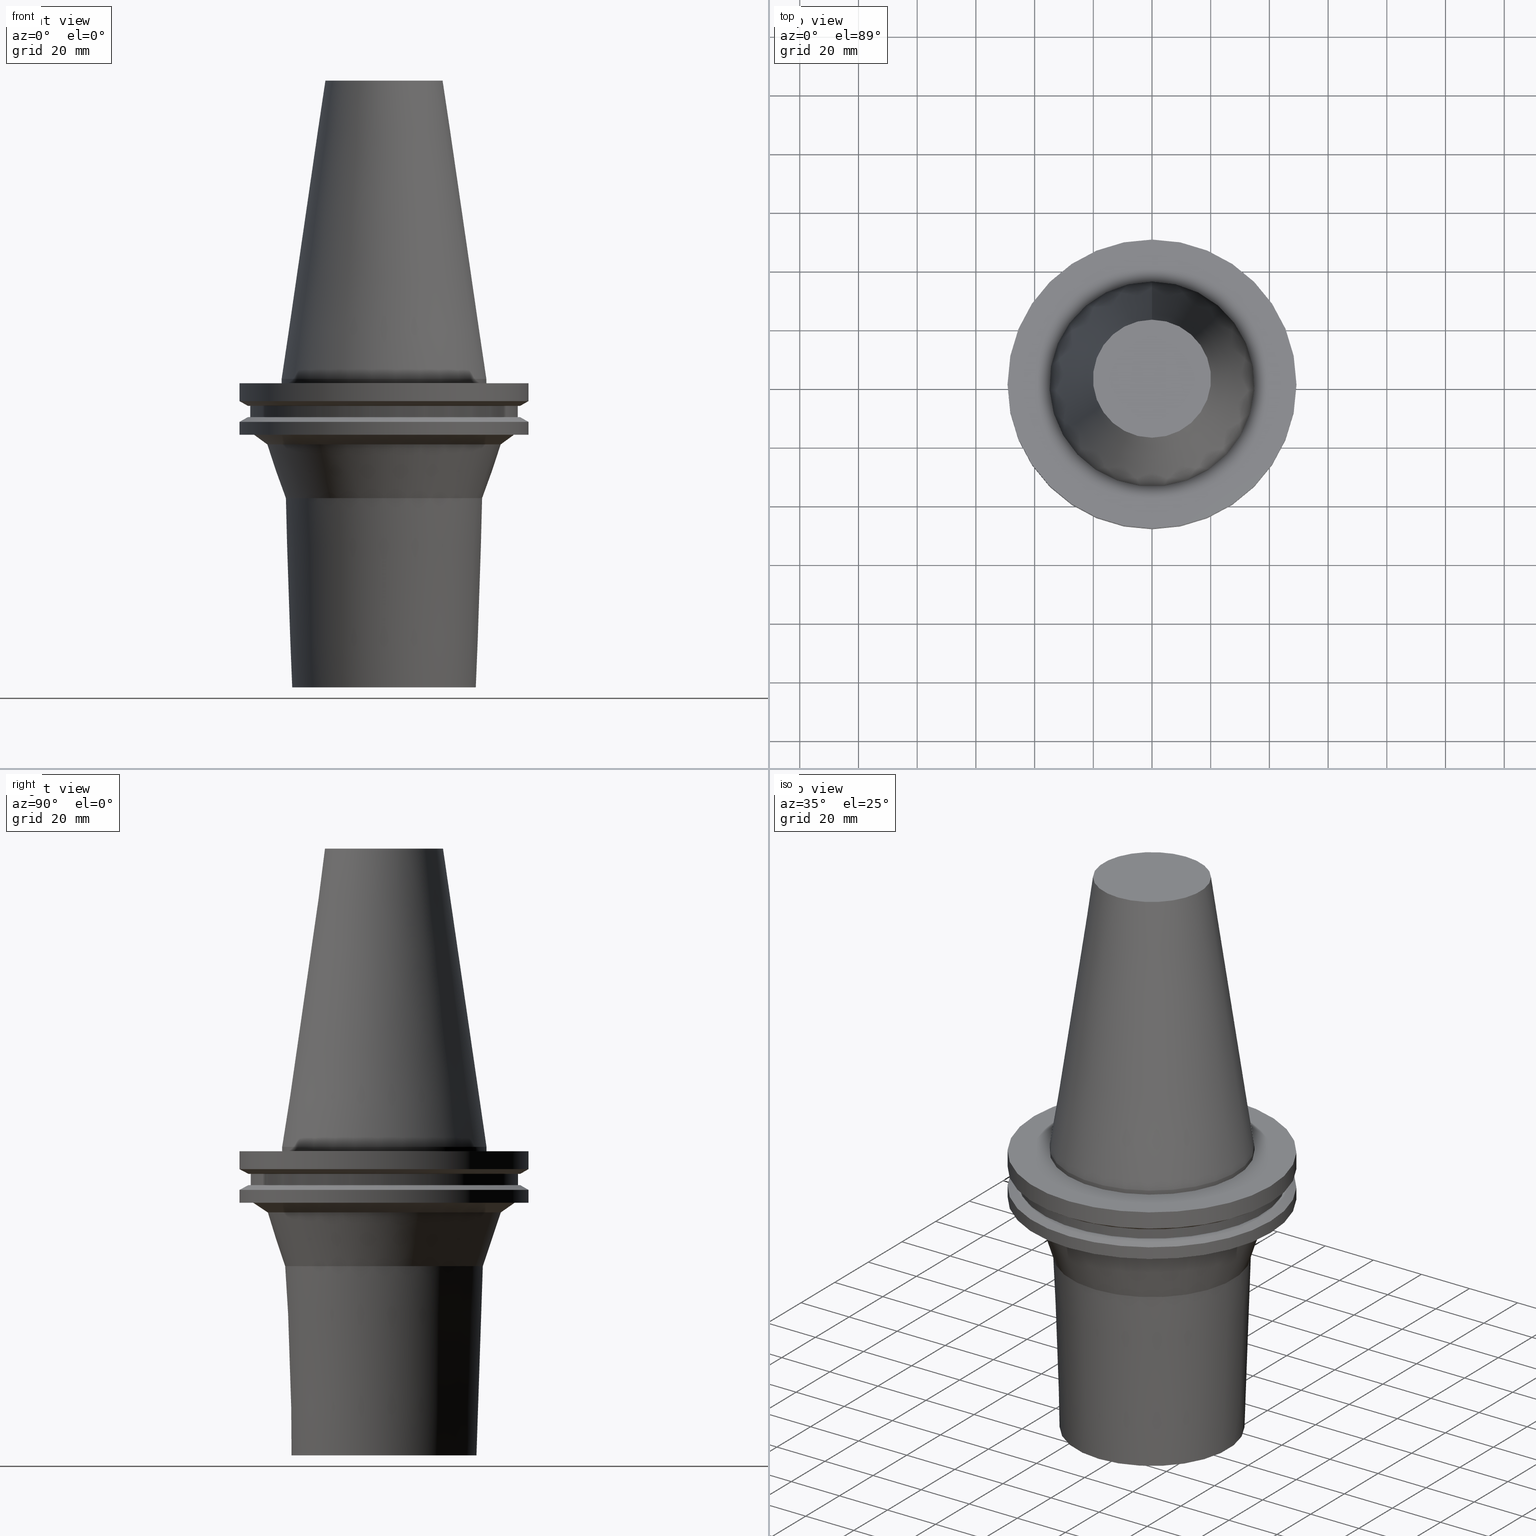
[diagram: canonical four-view strip — front | top / right | iso, engineering-drawing reading convention]
A machine part, canonical four-view strip (front | top / right | iso — engineering-drawing reading convention). The complete STEP part file that produces these views, byte-faithful:
ISO-10303-21;
HEADER;
FILE_DESCRIPTION((''),'1');
FILE_NAME('V:/01_Dxf_Field-HP\X2\FF71FF6FFF8CFF9F5916\X0\2013/BIGKAISER\X2\FF76FF80FF9BFF78FF9E63B28F095206\X0\_BKUS_201803/BCV_Y-S/BCV50Y-S63-4.125.stp','2018-03-13T06:14:54',(''),(''),'Spatial Interop R21 SP3','Kubotek KeyCreator 2011 V10.0.2 (22737)',' ');
FILE_SCHEMA(('automotive_design'));
ENDSEC;
DATA;
#1=MECHANICAL_DESIGN_GEOMETRIC_PRESENTATION_REPRESENTATION(' ',(#10,#11,#12,#13,#14,#15,#16,#17,#18,#19,#20,#21,#22,#23,#24,#25,#26,#27,#28,#29,#30,#31,#32,#33,#34,#35,#36,#37,#38,#39,#40,#41),#6);
#2=PRODUCT_DEFINITION_CONTEXT('',#42,'design');
#3=APPLICATION_PROTOCOL_DEFINITION('INTERNATIONAL STANDARD','automotive_design',1994,#42);
#4=PRODUCT_CATEGORY_RELATIONSHIP('NONE','NONE',#43,#44);
#5=SHAPE_DEFINITION_REPRESENTATION(#45,#46);
#6= (GEOMETRIC_REPRESENTATION_CONTEXT(3)GLOBAL_UNCERTAINTY_ASSIGNED_CONTEXT((#49))GLOBAL_UNIT_ASSIGNED_CONTEXT((#51,#52,#53))REPRESENTATION_CONTEXT('NONE','WORKSPACE'));
#10=STYLED_ITEM('',(#55),#56);
#11=STYLED_ITEM('',(#57,#58),#59);
#12=STYLED_ITEM('',(#60),#61);
#13=STYLED_ITEM('',(#62),#63);
#14=STYLED_ITEM('',(#64,#65),#66);
#15=STYLED_ITEM('',(#67,#68),#69);
#16=STYLED_ITEM('',(#70),#71);
#17=STYLED_ITEM('',(#72),#73);
#18=STYLED_ITEM('',(#74),#75);
#19=STYLED_ITEM('',(#76,#77),#78);
#20=STYLED_ITEM('',(#79,#80),#81);
#21=STYLED_ITEM('',(#82),#83);
#22=STYLED_ITEM('',(#84,#85),#86);
#23=STYLED_ITEM('',(#87,#88),#89);
#24=STYLED_ITEM('',(#90),#91);
#25=STYLED_ITEM('',(#92,#93),#94);
#26=STYLED_ITEM('',(#95,#96),#97);
#27=STYLED_ITEM('',(#98,#99),#100);
#28=STYLED_ITEM('',(#101,#102),#103);
#29=STYLED_ITEM('',(#104,#105),#106);
#30=STYLED_ITEM('',(#107,#108),#109);
#31=STYLED_ITEM('',(#110),#111);
#32=STYLED_ITEM('',(#112),#113);
#33=STYLED_ITEM('',(#114,#115),#116);
#34=STYLED_ITEM('',(#117,#118),#119);
#35=STYLED_ITEM('',(#120),#121);
#36=STYLED_ITEM('',(#122),#123);
#37=STYLED_ITEM('',(#124,#125),#126);
#38=STYLED_ITEM('',(#127),#128);
#39=STYLED_ITEM('',(#129,#130),#131);
#40=STYLED_ITEM('',(#132),#133);
#41=STYLED_ITEM('',(#134),#135);
#42=APPLICATION_CONTEXT(' ');
#43=PRODUCT_CATEGORY('part','NONE');
#44=PRODUCT_RELATED_PRODUCT_CATEGORY('detail',' ',(#136));
#45=PRODUCT_DEFINITION_SHAPE('NONE','NONE',#137);
#46=ADVANCED_BREP_SHAPE_REPRESENTATION('Unnamed[1]',(#89,#138),#6);
#49=UNCERTAINTY_MEASURE_WITH_UNIT(LENGTH_MEASURE(1.0E-006),#51,'','');
#51= (CONVERSION_BASED_UNIT('MILLIMETRE',#141)LENGTH_UNIT()NAMED_UNIT(#144));
#52= (NAMED_UNIT(#146)PLANE_ANGLE_UNIT()SI_UNIT($,.RADIAN.));
#53= (NAMED_UNIT(#146)SOLID_ANGLE_UNIT()SI_UNIT($,.STERADIAN.));
#55=PRESENTATION_STYLE_ASSIGNMENT((#152));
#56=EDGE_CURVE('Unnamed[1]',#153,#153,#154,.T.);
#57=PRESENTATION_STYLE_ASSIGNMENT((#155));
#58=PRESENTATION_STYLE_ASSIGNMENT((#156));
#59=ADVANCED_FACE('Unnamed[1]',(#157),#158,.T.);
#60=PRESENTATION_STYLE_ASSIGNMENT((#159));
#61=EDGE_CURVE('Unnamed[1]',#160,#160,#161,.T.);
#62=PRESENTATION_STYLE_ASSIGNMENT((#162));
#63=EDGE_CURVE('Unnamed[1]',#163,#163,#164,.T.);
#64=PRESENTATION_STYLE_ASSIGNMENT((#165));
#65=PRESENTATION_STYLE_ASSIGNMENT((#166));
#66=ADVANCED_FACE('Unnamed[1]',(#167,#168),#169,.T.);
#67=PRESENTATION_STYLE_ASSIGNMENT((#170));
#68=PRESENTATION_STYLE_ASSIGNMENT((#171));
#69=ADVANCED_FACE('Unnamed[1]',(#172,#173),#174,.T.);
#70=PRESENTATION_STYLE_ASSIGNMENT((#175));
#71=EDGE_CURVE('Unnamed[1]',#176,#176,#177,.T.);
#72=PRESENTATION_STYLE_ASSIGNMENT((#178));
#73=EDGE_CURVE('Unnamed[1]',#179,#179,#180,.T.);
#74=PRESENTATION_STYLE_ASSIGNMENT((#181));
#75=EDGE_CURVE('Unnamed[1]',#182,#182,#183,.T.);
#76=PRESENTATION_STYLE_ASSIGNMENT((#184));
#77=PRESENTATION_STYLE_ASSIGNMENT((#185));
#78=ADVANCED_FACE('Unnamed[1]',(#186,#187),#188,.T.);
#79=PRESENTATION_STYLE_ASSIGNMENT((#189));
#80=PRESENTATION_STYLE_ASSIGNMENT((#190));
#81=ADVANCED_FACE('Unnamed[1]',(#191),#192,.T.);
#82=PRESENTATION_STYLE_ASSIGNMENT((#193));
#83=EDGE_CURVE('Unnamed[1]',#194,#194,#195,.T.);
#84=PRESENTATION_STYLE_ASSIGNMENT((#196));
#85=PRESENTATION_STYLE_ASSIGNMENT((#197));
#86=ADVANCED_FACE('Unnamed[1]',(#198,#199),#200,.T.);
#87=PRESENTATION_STYLE_ASSIGNMENT((#201));
#88=PRESENTATION_STYLE_ASSIGNMENT((#202));
#89=MANIFOLD_SOLID_BREP('Unnamed[1]',#203);
#90=PRESENTATION_STYLE_ASSIGNMENT((#204));
#91=EDGE_CURVE('Unnamed[1]',#205,#205,#206,.T.);
#92=PRESENTATION_STYLE_ASSIGNMENT((#207));
#93=PRESENTATION_STYLE_ASSIGNMENT((#208));
#94=ADVANCED_FACE('Unnamed[1]',(#209,#210),#211,.T.);
#95=PRESENTATION_STYLE_ASSIGNMENT((#212));
#96=PRESENTATION_STYLE_ASSIGNMENT((#213));
#97=ADVANCED_FACE('Unnamed[1]',(#214,#215),#216,.T.);
#98=PRESENTATION_STYLE_ASSIGNMENT((#217));
#99=PRESENTATION_STYLE_ASSIGNMENT((#218));
#100=ADVANCED_FACE('Unnamed[1]',(#219,#220),#221,.T.);
#101=PRESENTATION_STYLE_ASSIGNMENT((#222));
#102=PRESENTATION_STYLE_ASSIGNMENT((#223));
#103=ADVANCED_FACE('Unnamed[1]',(#224,#225),#226,.T.);
#104=PRESENTATION_STYLE_ASSIGNMENT((#227));
#105=PRESENTATION_STYLE_ASSIGNMENT((#228));
#106=ADVANCED_FACE('Unnamed[1]',(#229,#230),#231,.T.);
#107=PRESENTATION_STYLE_ASSIGNMENT((#232));
#108=PRESENTATION_STYLE_ASSIGNMENT((#233));
#109=ADVANCED_FACE('Unnamed[1]',(#234,#235),#236,.T.);
#110=PRESENTATION_STYLE_ASSIGNMENT((#237));
#111=EDGE_CURVE('Unnamed[1]',#238,#238,#239,.T.);
#112=PRESENTATION_STYLE_ASSIGNMENT((#240));
#113=EDGE_CURVE('Unnamed[1]',#241,#241,#242,.T.);
#114=PRESENTATION_STYLE_ASSIGNMENT((#243));
#115=PRESENTATION_STYLE_ASSIGNMENT((#244));
#116=ADVANCED_FACE('Unnamed[1]',(#245,#246),#247,.T.);
#117=PRESENTATION_STYLE_ASSIGNMENT((#248));
#118=PRESENTATION_STYLE_ASSIGNMENT((#249));
#119=ADVANCED_FACE('Unnamed[1]',(#250,#251),#252,.T.);
#120=PRESENTATION_STYLE_ASSIGNMENT((#253));
#121=EDGE_CURVE('Unnamed[1]',#254,#254,#255,.T.);
#122=PRESENTATION_STYLE_ASSIGNMENT((#256));
#123=EDGE_CURVE('Unnamed[1]',#257,#257,#258,.T.);
#124=PRESENTATION_STYLE_ASSIGNMENT((#259));
#125=PRESENTATION_STYLE_ASSIGNMENT((#260));
#126=ADVANCED_FACE('Unnamed[1]',(#261,#262),#263,.T.);
#127=PRESENTATION_STYLE_ASSIGNMENT((#264));
#128=EDGE_CURVE('Unnamed[1]',#265,#265,#266,.T.);
#129=PRESENTATION_STYLE_ASSIGNMENT((#267));
#130=PRESENTATION_STYLE_ASSIGNMENT((#268));
#131=ADVANCED_FACE('Unnamed[1]',(#269,#270),#271,.T.);
#132=PRESENTATION_STYLE_ASSIGNMENT((#272));
#133=EDGE_CURVE('Unnamed[1]',#273,#273,#274,.T.);
#134=PRESENTATION_STYLE_ASSIGNMENT((#275));
#135=EDGE_CURVE('Unnamed[1]',#276,#276,#277,.T.);
#136=PRODUCT('Unnamed[1]','Unnamed[1]','PART-Unnamed[1]-DESC',(#278));
#137=PRODUCT_DEFINITION('NONE','NONE',#279,#2);
#138=AXIS2_PLACEMENT_3D('',#280,#281,#282);
#141=LENGTH_MEASURE_WITH_UNIT(LENGTH_MEASURE(1.0),#283);
#144=DIMENSIONAL_EXPONENTS(1.0,0.0,0.0,0.0,0.0,0.0,0.0);
#146=DIMENSIONAL_EXPONENTS(0.0,0.0,0.0,0.0,0.0,0.0,0.0);
#152=CURVE_STYLE('',#284,POSITIVE_LENGTH_MEASURE(1000.0),#285);
#153=VERTEX_POINT('',#286);
#154=CIRCLE('',#287,49.2125);
#155=SURFACE_STYLE_USAGE(.BOTH.,#288);
#156=CURVE_STYLE('',#289,POSITIVE_LENGTH_MEASURE(1000.0),#290);
#157=FACE_OUTER_BOUND('',#291,.T.);
#158=PLANE('',#292);
#159=CURVE_STYLE('',#293,POSITIVE_LENGTH_MEASURE(1000.0),#294);
#160=VERTEX_POINT('',#295);
#161=CIRCLE('',#296,33.6671528776939);
#162=CURVE_STYLE('',#297,POSITIVE_LENGTH_MEASURE(1000.0),#298);
#163=VERTEX_POINT('',#299);
#164=CIRCLE('',#300,20.1083333297217);
#165=SURFACE_STYLE_USAGE(.BOTH.,#301);
#166=CURVE_STYLE('',#302,POSITIVE_LENGTH_MEASURE(1000.0),#303);
#167=FACE_BOUND('',#304,.T.);
#168=FACE_BOUND('',#305,.T.);
#169=CONICAL_SURFACE('',#306,42.1518061390834,0.959931088596994);
#170=SURFACE_STYLE_USAGE(.BOTH.,#307);
#171=CURVE_STYLE('',#308,POSITIVE_LENGTH_MEASURE(1000.0),#309);
#172=FACE_BOUND('',#310,.T.);
#173=FACE_BOUND('',#311,.T.);
#174=CONICAL_SURFACE('',#312,47.821518775,1.04719755103023);
#175=CURVE_STYLE('',#313,POSITIVE_LENGTH_MEASURE(1000.0),#314);
#176=VERTEX_POINT('',#315);
#177=CIRCLE('',#316,45.645);
#178=CURVE_STYLE('',#317,POSITIVE_LENGTH_MEASURE(1000.0),#318);
#179=VERTEX_POINT('',#319);
#180=CIRCLE('',#320,44.5010376910482);
#181=CURVE_STYLE('',#321,POSITIVE_LENGTH_MEASURE(1000.0),#322);
#182=VERTEX_POINT('',#323);
#183=CIRCLE('',#324,46.43053755);
#184=SURFACE_STYLE_USAGE(.BOTH.,#325);
#185=CURVE_STYLE('',#326,POSITIVE_LENGTH_MEASURE(1000.0),#327);
#186=FACE_BOUND('',#328,.T.);
#187=FACE_BOUND('',#329,.T.);
#188=CONICAL_SURFACE('',#330,32.5835764388469,0.0336072556600481);
#189=SURFACE_STYLE_USAGE(.BOTH.,#331);
#190=CURVE_STYLE('',#332,POSITIVE_LENGTH_MEASURE(1000.0),#333);
#191=FACE_OUTER_BOUND('',#334,.T.);
#192=PLANE('',#335);
#193=CURVE_STYLE('',#336,POSITIVE_LENGTH_MEASURE(1000.0),#337);
#194=VERTEX_POINT('',#338);
#195=CIRCLE('',#339,49.2125);
#196=SURFACE_STYLE_USAGE(.BOTH.,#340);
#197=CURVE_STYLE('',#341,POSITIVE_LENGTH_MEASURE(1000.0),#342);
#198=FACE_BOUND('',#343,.T.);
#199=FACE_BOUND('',#344,.T.);
#200=CYLINDRICAL_SURFACE('',#345,49.2125);
#201=SURFACE_STYLE_USAGE(.BOTH.,#346);
#202=CURVE_STYLE('',#347,POSITIVE_LENGTH_MEASURE(1000.0),#348);
#203=CLOSED_SHELL('',(#59,#106,#97,#131,#86,#116,#103,#100,#119,#69,#126,#94,#66,#109,#78,#81));
#204=CURVE_STYLE('',#349,POSITIVE_LENGTH_MEASURE(1000.0),#350);
#205=VERTEX_POINT('',#351);
#206=CIRCLE('',#352,45.645);
#207=SURFACE_STYLE_USAGE(.BOTH.,#353);
#208=CURVE_STYLE('',#354,POSITIVE_LENGTH_MEASURE(1000.0),#355);
#209=FACE_BOUND('',#356,.T.);
#210=FACE_OUTER_BOUND('',#357,.T.);
#211=PLANE('',#358);
#212=SURFACE_STYLE_USAGE(.BOTH.,#359);
#213=CURVE_STYLE('',#360,POSITIVE_LENGTH_MEASURE(1000.0),#361);
#214=FACE_BOUND('',#362,.T.);
#215=FACE_BOUND('',#363,.T.);
#216=CYLINDRICAL_SURFACE('',#364,34.925);
#217=SURFACE_STYLE_USAGE(.BOTH.,#365);
#218=CURVE_STYLE('',#366,POSITIVE_LENGTH_MEASURE(1000.0),#367);
#219=FACE_BOUND('',#368,.T.);
#220=FACE_BOUND('',#369,.T.);
#221=CYLINDRICAL_SURFACE('',#370,45.645);
#222=SURFACE_STYLE_USAGE(.BOTH.,#371);
#223=CURVE_STYLE('',#372,POSITIVE_LENGTH_MEASURE(1000.0),#373);
#224=FACE_BOUND('',#374,.T.);
#225=FACE_OUTER_BOUND('',#375,.T.);
#226=PLANE('',#376);
#227=SURFACE_STYLE_USAGE(.BOTH.,#377);
#228=CURVE_STYLE('',#378,POSITIVE_LENGTH_MEASURE(1000.0),#379);
#229=FACE_BOUND('',#380,.T.);
#230=FACE_BOUND('',#381,.T.);
#231=CONICAL_SURFACE('',#382,27.5166666648608,0.144812498273746);
#232=SURFACE_STYLE_USAGE(.BOTH.,#383);
#233=CURVE_STYLE('',#384,POSITIVE_LENGTH_MEASURE(1000.0),#385);
#234=FACE_BOUND('',#386,.T.);
#235=FACE_BOUND('',#387,.T.);
#236=CONICAL_SURFACE('',#388,36.7348637324063,0.323496413372039);
#237=CURVE_STYLE('',#389,POSITIVE_LENGTH_MEASURE(1000.0),#390);
#238=VERTEX_POINT('',#391);
#239=CIRCLE('',#392,34.925);
#240=CURVE_STYLE('',#393,POSITIVE_LENGTH_MEASURE(1000.0),#394);
#241=VERTEX_POINT('',#395);
#242=CIRCLE('',#396,31.5);
#243=SURFACE_STYLE_USAGE(.BOTH.,#397);
#244=CURVE_STYLE('',#398,POSITIVE_LENGTH_MEASURE(1000.0),#399);
#245=FACE_BOUND('',#400,.T.);
#246=FACE_BOUND('',#401,.T.);
#247=CONICAL_SURFACE('',#402,47.821518775,1.04719755103024);
#248=SURFACE_STYLE_USAGE(.BOTH.,#403);
#249=CURVE_STYLE('',#404,POSITIVE_LENGTH_MEASURE(1000.0),#405);
#250=FACE_OUTER_BOUND('',#406,.T.);
#251=FACE_BOUND('',#407,.T.);
#252=PLANE('',#408);
#253=CURVE_STYLE('',#409,POSITIVE_LENGTH_MEASURE(1000.0),#410);
#254=VERTEX_POINT('',#411);
#255=CIRCLE('',#412,46.43053755);
#256=CURVE_STYLE('',#413,POSITIVE_LENGTH_MEASURE(1000.0),#414);
#257=VERTEX_POINT('',#415);
#258=CIRCLE('',#416,39.8025745871186);
#259=SURFACE_STYLE_USAGE(.BOTH.,#417);
#260=CURVE_STYLE('',#418,POSITIVE_LENGTH_MEASURE(1000.0),#419);
#261=FACE_BOUND('',#420,.T.);
#262=FACE_BOUND('',#421,.T.);
#263=CYLINDRICAL_SURFACE('',#422,49.2125);
#264=CURVE_STYLE('',#423,POSITIVE_LENGTH_MEASURE(1000.0),#424);
#265=VERTEX_POINT('',#425);
#266=CIRCLE('',#426,34.925);
#267=SURFACE_STYLE_USAGE(.BOTH.,#427);
#268=CURVE_STYLE('',#428,POSITIVE_LENGTH_MEASURE(1000.0),#429);
#269=FACE_OUTER_BOUND('',#430,.T.);
#270=FACE_BOUND('',#431,.T.);
#271=PLANE('',#432);
#272=CURVE_STYLE('',#433,POSITIVE_LENGTH_MEASURE(1000.0),#434);
#273=VERTEX_POINT('',#435);
#274=CIRCLE('',#436,49.2125);
#275=CURVE_STYLE('',#437,POSITIVE_LENGTH_MEASURE(1000.0),#438);
#276=VERTEX_POINT('',#439);
#277=CIRCLE('',#440,49.2125);
#278=PRODUCT_CONTEXT('',#42,'mechanical');
#279=PRODUCT_DEFINITION_FORMATION_WITH_SPECIFIED_SOURCE(' ','NONE',#136,.NOT_KNOWN.);
#280=CARTESIAN_POINT('',(0.0,0.0,0.0));
#281=DIRECTION('',(0.0,0.0,1.0));
#282=DIRECTION('',(1.0,0.0,0.0));
#283= (NAMED_UNIT(#144)LENGTH_UNIT()SI_UNIT(.MILLI.,.METRE.));
#284=DRAUGHTING_PRE_DEFINED_CURVE_FONT('continuous');
#285=COLOUR_RGB('',0.0,1.0,0.0);
#286=CARTESIAN_POINT('',(9.18485099360509E-017,49.2125,-1.49999999999999));
#287=AXIS2_PLACEMENT_3D('',#442,#443,#444);
#288=SURFACE_SIDE_STYLE('',(#445));
#289=DRAUGHTING_PRE_DEFINED_CURVE_FONT('continuous');
#290=COLOUR_RGB('',0.0,1.0,0.0);
#291=EDGE_LOOP('',(#446));
#292=AXIS2_PLACEMENT_3D('',#447,#448,#449);
#293=DRAUGHTING_PRE_DEFINED_CURVE_FONT('continuous');
#294=COLOUR_RGB('',0.0,1.0,0.0);
#295=CARTESIAN_POINT('',(2.4884582069141E-015,33.6671528776939,-40.6396065975375));
#296=AXIS2_PLACEMENT_3D('',#450,#451,#452);
#297=DRAUGHTING_PRE_DEFINED_CURVE_FONT('continuous');
#298=COLOUR_RGB('',0.0,1.0,0.0);
#299=CARTESIAN_POINT('',(-6.22120573966855E-015,20.1083333297217,101.6));
#300=AXIS2_PLACEMENT_3D('',#453,#454,#455);
#301=SURFACE_SIDE_STYLE('',(#456));
#302=DRAUGHTING_PRE_DEFINED_CURVE_FONT('continuous');
#303=COLOUR_RGB('',0.0,1.0,0.0);
#304=EDGE_LOOP('',(#457));
#305=EDGE_LOOP('',(#458));
#306=AXIS2_PLACEMENT_3D('',#459,#460,#461);
#307=SURFACE_SIDE_STYLE('',(#462));
#308=DRAUGHTING_PRE_DEFINED_CURVE_FONT('continuous');
#309=COLOUR_RGB('',0.0,1.0,0.0);
#310=EDGE_LOOP('',(#463));
#311=EDGE_LOOP('',(#464));
#312=AXIS2_PLACEMENT_3D('',#465,#466,#467);
#313=DRAUGHTING_PRE_DEFINED_CURVE_FONT('continuous');
#314=COLOUR_RGB('',0.0,1.0,0.0);
#315=CARTESIAN_POINT('',(7.98469713044073E-016,45.645,-13.04));
#316=AXIS2_PLACEMENT_3D('',#468,#469,#470);
#317=DRAUGHTING_PRE_DEFINED_CURVE_FONT('continuous');
#318=COLOUR_RGB('',0.0,1.0,0.0);
#319=CARTESIAN_POINT('',(1.16647607618785E-015,44.5010376910482,-19.05));
#320=AXIS2_PLACEMENT_3D('',#471,#472,#473);
#321=DRAUGHTING_PRE_DEFINED_CURVE_FONT('continuous');
#322=COLOUR_RGB('',0.0,1.0,0.0);
#323=CARTESIAN_POINT('',(5.63337527607782E-016,46.43053755,-9.2));
#324=AXIS2_PLACEMENT_3D('',#474,#475,#476);
#325=SURFACE_SIDE_STYLE('',(#477));
#326=DRAUGHTING_PRE_DEFINED_CURVE_FONT('continuous');
#327=COLOUR_RGB('',0.0,1.0,0.0);
#328=EDGE_LOOP('',(#478));
#329=EDGE_LOOP('',(#479));
#330=AXIS2_PLACEMENT_3D('',#480,#481,#482);
#331=SURFACE_SIDE_STYLE('',(#483));
#332=DRAUGHTING_PRE_DEFINED_CURVE_FONT('continuous');
#333=COLOUR_RGB('',0.0,1.0,0.0);
#334=EDGE_LOOP('',(#484));
#335=AXIS2_PLACEMENT_3D('',#485,#486,#487);
#336=DRAUGHTING_PRE_DEFINED_CURVE_FONT('continuous');
#337=COLOUR_RGB('',0.0,1.0,0.0);
#338=CARTESIAN_POINT('',(1.16647607618785E-015,49.2125,-19.05));
#339=AXIS2_PLACEMENT_3D('',#488,#489,#490);
#340=SURFACE_SIDE_STYLE('',(#491));
#341=DRAUGHTING_PRE_DEFINED_CURVE_FONT('continuous');
#342=COLOUR_RGB('',0.0,1.0,0.0);
#343=EDGE_LOOP('',(#492));
#344=EDGE_LOOP('',(#493));
#345=AXIS2_PLACEMENT_3D('',#494,#495,#496);
#346=SURFACE_SIDE_STYLE('',(#497));
#347=DRAUGHTING_PRE_DEFINED_CURVE_FONT('continuous');
#348=COLOUR_RGB('',0.0,1.0,0.0);
#349=DRAUGHTING_PRE_DEFINED_CURVE_FONT('continuous');
#350=COLOUR_RGB('',0.0,1.0,0.0);
#351=CARTESIAN_POINT('',(5.63337527607782E-016,45.645,-9.2));
#352=AXIS2_PLACEMENT_3D('',#498,#499,#500);
#353=SURFACE_SIDE_STYLE('',(#501));
#354=DRAUGHTING_PRE_DEFINED_CURVE_FONT('continuous');
#355=COLOUR_RGB('',0.0,1.0,0.0);
#356=EDGE_LOOP('',(#502));
#357=EDGE_LOOP('',(#503));
#358=AXIS2_PLACEMENT_3D('',#504,#505,#506);
#359=SURFACE_SIDE_STYLE('',(#507));
#360=DRAUGHTING_PRE_DEFINED_CURVE_FONT('continuous');
#361=COLOUR_RGB('',0.0,1.0,0.0);
#362=EDGE_LOOP('',(#508));
#363=EDGE_LOOP('',(#509));
#364=AXIS2_PLACEMENT_3D('',#510,#511,#512);
#365=SURFACE_SIDE_STYLE('',(#513));
#366=DRAUGHTING_PRE_DEFINED_CURVE_FONT('continuous');
#367=COLOUR_RGB('',0.0,1.0,0.0);
#368=EDGE_LOOP('',(#514));
#369=EDGE_LOOP('',(#515));
#370=AXIS2_PLACEMENT_3D('',#516,#517,#518);
#371=SURFACE_SIDE_STYLE('',(#519));
#372=DRAUGHTING_PRE_DEFINED_CURVE_FONT('continuous');
#373=COLOUR_RGB('',0.0,1.0,0.0);
#374=EDGE_LOOP('',(#520));
#375=EDGE_LOOP('',(#521));
#376=AXIS2_PLACEMENT_3D('',#522,#523,#524);
#377=SURFACE_SIDE_STYLE('',(#525));
#378=DRAUGHTING_PRE_DEFINED_CURVE_FONT('continuous');
#379=COLOUR_RGB('',0.0,1.0,0.0);
#380=EDGE_LOOP('',(#526));
#381=EDGE_LOOP('',(#527));
#382=AXIS2_PLACEMENT_3D('',#528,#529,#530);
#383=SURFACE_SIDE_STYLE('',(#531));
#384=DRAUGHTING_PRE_DEFINED_CURVE_FONT('continuous');
#385=COLOUR_RGB('',0.0,1.0,0.0);
#386=EDGE_LOOP('',(#532));
#387=EDGE_LOOP('',(#533));
#388=AXIS2_PLACEMENT_3D('',#534,#535,#536);
#389=DRAUGHTING_PRE_DEFINED_CURVE_FONT('continuous');
#390=COLOUR_RGB('',0.0,1.0,0.0);
#391=CARTESIAN_POINT('',(-4.30483861169435E-031,34.925,4.27707894602213E-015));
#392=AXIS2_PLACEMENT_3D('',#537,#538,#539);
#393=DRAUGHTING_PRE_DEFINED_CURVE_FONT('continuous');
#394=COLOUR_RGB('',0.0,1.0,0.0);
#395=CARTESIAN_POINT('',(6.43551892951931E-015,31.4999999999999,-105.1));
#396=AXIS2_PLACEMENT_3D('',#540,#541,#542);
#397=SURFACE_SIDE_STYLE('',(#543));
#398=DRAUGHTING_PRE_DEFINED_CURVE_FONT('continuous');
#399=COLOUR_RGB('',0.0,1.0,0.0);
#400=EDGE_LOOP('',(#544));
#401=EDGE_LOOP('',(#545));
#402=AXIS2_PLACEMENT_3D('',#546,#547,#548);
#403=SURFACE_SIDE_STYLE('',(#549));
#404=DRAUGHTING_PRE_DEFINED_CURVE_FONT('continuous');
#405=COLOUR_RGB('',0.0,1.0,0.0);
#406=EDGE_LOOP('',(#550));
#407=EDGE_LOOP('',(#551));
#408=AXIS2_PLACEMENT_3D('',#552,#553,#554);
#409=DRAUGHTING_PRE_DEFINED_CURVE_FONT('continuous');
#410=COLOUR_RGB('',0.0,1.0,0.0);
#411=CARTESIAN_POINT('',(7.98469713044073E-016,46.43053755,-13.04));
#412=AXIS2_PLACEMENT_3D('',#555,#556,#557);
#413=DRAUGHTING_PRE_DEFINED_CURVE_FONT('continuous');
#414=COLOUR_RGB('',0.0,1.0,0.0);
#415=CARTESIAN_POINT('',(1.36792430753272E-015,39.8025745871186,-22.3398992833709));
#416=AXIS2_PLACEMENT_3D('',#558,#559,#560);
#417=SURFACE_SIDE_STYLE('',(#561));
#418=DRAUGHTING_PRE_DEFINED_CURVE_FONT('continuous');
#419=COLOUR_RGB('',0.0,1.0,0.0);
#420=EDGE_LOOP('',(#562));
#421=EDGE_LOOP('',(#563));
#422=AXIS2_PLACEMENT_3D('',#564,#565,#566);
#423=DRAUGHTING_PRE_DEFINED_CURVE_FONT('continuous');
#424=COLOUR_RGB('',0.0,1.0,0.0);
#425=CARTESIAN_POINT('',(9.18485099360511E-017,34.925,-1.5));
#426=AXIS2_PLACEMENT_3D('',#567,#568,#569);
#427=SURFACE_SIDE_STYLE('',(#570));
#428=DRAUGHTING_PRE_DEFINED_CURVE_FONT('continuous');
#429=COLOUR_RGB('',0.0,1.0,0.0);
#430=EDGE_LOOP('',(#571));
#431=EDGE_LOOP('',(#572));
#432=AXIS2_PLACEMENT_3D('',#573,#574,#575);
#433=DRAUGHTING_PRE_DEFINED_CURVE_FONT('continuous');
#434=COLOUR_RGB('',0.0,1.0,0.0);
#435=CARTESIAN_POINT('',(4.64988177918915E-016,49.2125,-7.59383323));
#436=AXIS2_PLACEMENT_3D('',#576,#577,#578);
#437=DRAUGHTING_PRE_DEFINED_CURVE_FONT('continuous');
#438=COLOUR_RGB('',0.0,1.0,0.0);
#439=CARTESIAN_POINT('',(8.96819062732941E-016,49.2125,-14.64616677));
#440=AXIS2_PLACEMENT_3D('',#579,#580,#581);
#442=CARTESIAN_POINT('',(9.18485099360506E-017,-8.40509071371688E-015,-1.49999999999999));
#443=DIRECTION('',(6.12323399573677E-017,-1.2238438572974E-016,-1.0));
#444=DIRECTION('',(2.6667295817079E-033,1.0,-1.2238438572974E-016));
#445=SURFACE_STYLE_FILL_AREA(#582);
#446=ORIENTED_EDGE('',*,*,#63,.F.);
#447=CARTESIAN_POINT('',(-6.22120573966855E-015,10.0541666648608,101.6));
#448=DIRECTION('',(-6.12323399573677E-017,-1.22464679914735E-016,1.0));
#449=DIRECTION('',(1.23259516440783E-032,-1.0,-1.22464679914735E-016));
#450=CARTESIAN_POINT('',(2.4884582069141E-015,-1.31951674248599E-014,-40.6396065975375));
#451=DIRECTION('',(6.12323399573676E-017,-1.22384385729735E-016,-1.0));
#452=DIRECTION('',(2.66672958170495E-033,1.0,-1.22384385729735E-016));
#453=CARTESIAN_POINT('',(-6.22120573966855E-015,4.21273945501842E-015,101.6));
#454=DIRECTION('',(6.12323399573677E-017,-1.22384385729695E-016,-1.0));
#455=DIRECTION('',(2.66672958170481E-033,1.0,-1.22384385729695E-016));
#456=SURFACE_STYLE_FILL_AREA(#583);
#457=ORIENTED_EDGE('',*,*,#123,.F.);
#458=ORIENTED_EDGE('',*,*,#73,.T.);
#459=CARTESIAN_POINT('',(1.26720019186029E-015,-1.07542528347277E-014,-20.6949496416854));
#460=DIRECTION('',(-6.12323399573676E-017,1.22384385729759E-016,1.0));
#461=DIRECTION('',(2.66672958171266E-033,1.0,-1.22384385729759E-016));
#462=SURFACE_STYLE_FILL_AREA(#584);
#463=ORIENTED_EDGE('',*,*,#135,.F.);
#464=ORIENTED_EDGE('',*,*,#121,.T.);
#465=CARTESIAN_POINT('',(8.47644387888507E-016,-9.91569139180096E-015,-13.843083385));
#466=DIRECTION('',(6.12323399573677E-017,-1.22384385729713E-016,-1.0));
#467=DIRECTION('',(2.66672958170651E-033,1.0,-1.22384385729713E-016));
#468=CARTESIAN_POINT('',(7.98469713044073E-016,-9.81740652503798E-015,-13.04));
#469=DIRECTION('',(6.12323399573677E-017,-1.22384385729721E-016,-1.0));
#470=DIRECTION('',(2.66672958170441E-033,1.0,-1.22384385729721E-016));
#471=CARTESIAN_POINT('',(1.16647607618785E-015,-1.05529366832737E-014,-19.05));
#472=DIRECTION('',(6.12323399573677E-017,-1.22384385729751E-016,-1.0));
#473=DIRECTION('',(2.66672958170638E-033,1.0,-1.22384385729751E-016));
#474=CARTESIAN_POINT('',(5.63337527607782E-016,-9.34745048383581E-015,-9.19999999999999));
#475=DIRECTION('',(6.12323399573677E-017,-1.22384385729754E-016,-1.0));
#476=DIRECTION('',(2.66672958171277E-033,1.0,-1.22384385729754E-016));
#477=SURFACE_STYLE_FILL_AREA(#585);
#478=ORIENTED_EDGE('',*,*,#113,.F.);
#479=ORIENTED_EDGE('',*,*,#61,.T.);
#480=CARTESIAN_POINT('',(4.46198856821671E-015,-1.71396402500884E-014,-72.8698032987685));
#481=DIRECTION('',(-6.12323399573676E-017,1.22384385729724E-016,1.0));
#482=DIRECTION('',(2.66672958170766E-033,1.0,-1.22384385729724E-016));
#483=SURFACE_STYLE_FILL_AREA(#586);
#484=ORIENTED_EDGE('',*,*,#113,.T.);
#485=CARTESIAN_POINT('',(6.4355189295193E-015,15.75,-105.099999999999));
#486=DIRECTION('',(6.12323399573677E-017,-9.35143846355328E-015,-1.0));
#487=DIRECTION('',(5.67783306359929E-031,1.0,-9.35143846355328E-015));
#488=CARTESIAN_POINT('',(1.16647607618785E-015,-1.05529366832737E-014,-19.05));
#489=DIRECTION('',(6.12323399573676E-017,-1.2238438572974E-016,-1.0));
#490=DIRECTION('',(2.6667295817079E-033,1.0,-1.2238438572974E-016));
#491=SURFACE_STYLE_FILL_AREA(#587);
#492=ORIENTED_EDGE('',*,*,#133,.F.);
#493=ORIENTED_EDGE('',*,*,#56,.T.);
#494=CARTESIAN_POINT('',(2.78418343927483E-016,-8.77798573201337E-015,-4.54691661499999));
#495=DIRECTION('',(6.12323399573677E-017,-1.2238438572974E-016,-1.0));
#496=DIRECTION('',(2.6667295817079E-033,1.0,-1.2238438572974E-016));
#497=SURFACE_STYLE_FILL_AREA(#588);
#498=CARTESIAN_POINT('',(5.63337527607782E-016,-9.34745048383581E-015,-9.19999999999999));
#499=DIRECTION('',(6.12323399573677E-017,-1.22384385729721E-016,-1.0));
#500=DIRECTION('',(2.66672958170441E-033,1.0,-1.22384385729721E-016));
#501=SURFACE_STYLE_FILL_AREA(#589);
#502=ORIENTED_EDGE('',*,*,#73,.F.);
#503=ORIENTED_EDGE('',*,*,#83,.T.);
#504=CARTESIAN_POINT('',(1.16647607618785E-015,46.8567688455241,-19.05));
#505=DIRECTION('',(6.12323399573677E-017,1.22464679914735E-016,-1.0));
#506=DIRECTION('',(-1.23259516440783E-032,1.0,1.22464679914735E-016));
#507=SURFACE_STYLE_FILL_AREA(#590);
#508=ORIENTED_EDGE('',*,*,#128,.F.);
#509=ORIENTED_EDGE('',*,*,#111,.T.);
#510=CARTESIAN_POINT('',(4.59242549680249E-017,-8.31330242441958E-015,-0.749999999999986));
#511=DIRECTION('',(6.12323399573676E-017,-1.22384385729721E-016,-1.0));
#512=DIRECTION('',(2.66672958170765E-033,1.0,-1.22384385729721E-016));
#513=SURFACE_STYLE_FILL_AREA(#591);
#514=ORIENTED_EDGE('',*,*,#71,.F.);
#515=ORIENTED_EDGE('',*,*,#91,.T.);
#516=CARTESIAN_POINT('',(6.80903620325928E-016,-9.5824285044369E-015,-11.12));
#517=DIRECTION('',(6.12323399573677E-017,-1.22384385729721E-016,-1.0));
#518=DIRECTION('',(2.66672958170441E-033,1.0,-1.22384385729721E-016));
#519=SURFACE_STYLE_FILL_AREA(#592);
#520=ORIENTED_EDGE('',*,*,#91,.F.);
#521=ORIENTED_EDGE('',*,*,#75,.T.);
#522=CARTESIAN_POINT('',(5.63337527607782E-016,46.037768775,-9.2));
#523=DIRECTION('',(6.12323399573677E-017,1.22464679914735E-016,-1.0));
#524=DIRECTION('',(-1.23259516440783E-032,1.0,1.22464679914735E-016));
#525=SURFACE_STYLE_FILL_AREA(#593);
#526=ORIENTED_EDGE('',*,*,#111,.F.);
#527=ORIENTED_EDGE('',*,*,#63,.T.);
#528=CARTESIAN_POINT('',(-3.11060286983428E-015,-2.00438734005193E-015,50.8));
#529=DIRECTION('',(6.12323399573677E-017,-1.22384385729741E-016,-1.0));
#530=DIRECTION('',(2.66672958170824E-033,1.0,-1.22384385729741E-016));
#531=SURFACE_STYLE_FILL_AREA(#594);
#532=ORIENTED_EDGE('',*,*,#61,.F.);
#533=ORIENTED_EDGE('',*,*,#123,.T.);
#534=CARTESIAN_POINT('',(1.92819125722341E-015,-1.20753682055208E-014,-31.4897529404542));
#535=DIRECTION('',(-6.12323399573677E-017,1.2238438572973E-016,1.0));
#536=DIRECTION('',(2.66672958170683E-033,1.0,-1.2238438572973E-016));
#537=CARTESIAN_POINT('',(-8.7016388700601E-031,-8.22151413512229E-015,1.4210854715202E-014));
#538=DIRECTION('',(6.12323399573676E-017,-1.22384385729721E-016,-1.0));
#539=DIRECTION('',(2.66672958170765E-033,1.0,-1.22384385729721E-016));
#540=CARTESIAN_POINT('',(6.43551892951931E-015,-2.1084113075317E-014,-105.099999999999));
#541=DIRECTION('',(6.12323399573676E-017,-1.22384385729714E-016,-1.0));
#542=DIRECTION('',(2.66672958170486E-033,1.0,-1.22384385729714E-016));
#543=SURFACE_STYLE_FILL_AREA(#595);
#544=ORIENTED_EDGE('',*,*,#75,.F.);
#545=ORIENTED_EDGE('',*,*,#133,.T.);
#546=CARTESIAN_POINT('',(5.14162852763349E-016,-9.24916561707284E-015,-8.396916615));
#547=DIRECTION('',(-6.12323399573677E-017,1.22384385729713E-016,1.0));
#548=DIRECTION('',(2.66672958170651E-033,1.0,-1.22384385729713E-016));
#549=SURFACE_STYLE_FILL_AREA(#596);
#550=ORIENTED_EDGE('',*,*,#121,.F.);
#551=ORIENTED_EDGE('',*,*,#71,.T.);
#552=CARTESIAN_POINT('',(7.98469713044073E-016,46.037768775,-13.04));
#553=DIRECTION('',(-6.12323399573677E-017,-1.22464679914735E-016,1.0));
#554=DIRECTION('',(1.23259516440783E-032,-1.0,-1.22464679914735E-016));
#555=CARTESIAN_POINT('',(7.98469713044073E-016,-9.81740652503798E-015,-13.04));
#556=DIRECTION('',(6.12323399573677E-017,-1.22384385729754E-016,-1.0));
#557=DIRECTION('',(2.6667295817089E-033,1.0,-1.22384385729754E-016));
#558=CARTESIAN_POINT('',(1.36792430753272E-015,-1.09555689861817E-014,-22.3398992833709));
#559=DIRECTION('',(6.12323399573677E-017,-1.22384385729767E-016,-1.0));
#560=DIRECTION('',(2.66672958171066E-033,1.0,-1.22384385729767E-016));
#561=SURFACE_STYLE_FILL_AREA(#597);
#562=ORIENTED_EDGE('',*,*,#83,.F.);
#563=ORIENTED_EDGE('',*,*,#135,.T.);
#564=CARTESIAN_POINT('',(1.0316475694604E-015,-1.02834564709188E-014,-16.848083385));
#565=DIRECTION('',(6.12323399573676E-017,-1.2238438572974E-016,-1.0));
#566=DIRECTION('',(2.6667295817079E-033,1.0,-1.2238438572974E-016));
#567=CARTESIAN_POINT('',(9.18485099360506E-017,-8.40509071371688E-015,-1.49999999999999));
#568=DIRECTION('',(6.12323399573676E-017,-1.22384385729721E-016,-1.0));
#569=DIRECTION('',(2.66672958170765E-033,1.0,-1.22384385729721E-016));
#570=SURFACE_STYLE_FILL_AREA(#598);
#571=ORIENTED_EDGE('',*,*,#56,.F.);
#572=ORIENTED_EDGE('',*,*,#128,.T.);
#573=CARTESIAN_POINT('',(9.1848509936051E-017,42.06875,-1.49999999999999));
#574=DIRECTION('',(-6.12323399573677E-017,-1.22464679914735E-016,1.0));
#575=DIRECTION('',(1.23259516440783E-032,-1.0,-1.22464679914735E-016));
#576=CARTESIAN_POINT('',(4.64988177918915E-016,-9.15088075030986E-015,-7.59383322999999));
#577=DIRECTION('',(6.12323399573677E-017,-1.2238438572974E-016,-1.0));
#578=DIRECTION('',(2.6667295817079E-033,1.0,-1.2238438572974E-016));
#579=CARTESIAN_POINT('',(8.96819062732941E-016,-1.00139762585639E-014,-14.64616677));
#580=DIRECTION('',(6.12323399573676E-017,-1.2238438572974E-016,-1.0));
#581=DIRECTION('',(2.6667295817079E-033,1.0,-1.2238438572974E-016));
#582=FILL_AREA_STYLE('',(#599));
#583=FILL_AREA_STYLE('',(#600));
#584=FILL_AREA_STYLE('',(#601));
#585=FILL_AREA_STYLE('',(#602));
#586=FILL_AREA_STYLE('',(#603));
#587=FILL_AREA_STYLE('',(#604));
#588=FILL_AREA_STYLE('',(#605));
#589=FILL_AREA_STYLE('',(#606));
#590=FILL_AREA_STYLE('',(#607));
#591=FILL_AREA_STYLE('',(#608));
#592=FILL_AREA_STYLE('',(#609));
#593=FILL_AREA_STYLE('',(#610));
#594=FILL_AREA_STYLE('',(#611));
#595=FILL_AREA_STYLE('',(#612));
#596=FILL_AREA_STYLE('',(#613));
#597=FILL_AREA_STYLE('',(#614));
#598=FILL_AREA_STYLE('',(#615));
#599=FILL_AREA_STYLE_COLOUR('',#616);
#600=FILL_AREA_STYLE_COLOUR('',#617);
#601=FILL_AREA_STYLE_COLOUR('',#618);
#602=FILL_AREA_STYLE_COLOUR('',#619);
#603=FILL_AREA_STYLE_COLOUR('',#620);
#604=FILL_AREA_STYLE_COLOUR('',#621);
#605=FILL_AREA_STYLE_COLOUR('',#622);
#606=FILL_AREA_STYLE_COLOUR('',#623);
#607=FILL_AREA_STYLE_COLOUR('',#624);
#608=FILL_AREA_STYLE_COLOUR('',#625);
#609=FILL_AREA_STYLE_COLOUR('',#626);
#610=FILL_AREA_STYLE_COLOUR('',#627);
#611=FILL_AREA_STYLE_COLOUR('',#628);
#612=FILL_AREA_STYLE_COLOUR('',#629);
#613=FILL_AREA_STYLE_COLOUR('',#630);
#614=FILL_AREA_STYLE_COLOUR('',#631);
#615=FILL_AREA_STYLE_COLOUR('',#632);
#616=COLOUR_RGB('',0.0,1.0,0.0);
#617=COLOUR_RGB('',0.0,1.0,0.0);
#618=COLOUR_RGB('',0.0,1.0,0.0);
#619=COLOUR_RGB('',0.0,1.0,0.0);
#620=COLOUR_RGB('',0.0,1.0,0.0);
#621=COLOUR_RGB('',0.0,1.0,0.0);
#622=COLOUR_RGB('',0.0,1.0,0.0);
#623=COLOUR_RGB('',0.0,1.0,0.0);
#624=COLOUR_RGB('',0.0,1.0,0.0);
#625=COLOUR_RGB('',0.0,1.0,0.0);
#626=COLOUR_RGB('',0.0,1.0,0.0);
#627=COLOUR_RGB('',0.0,1.0,0.0);
#628=COLOUR_RGB('',0.0,1.0,0.0);
#629=COLOUR_RGB('',0.0,1.0,0.0);
#630=COLOUR_RGB('',0.0,1.0,0.0);
#631=COLOUR_RGB('',0.0,1.0,0.0);
#632=COLOUR_RGB('',0.0,1.0,0.0);
ENDSEC;
END-ISO-10303-21;
